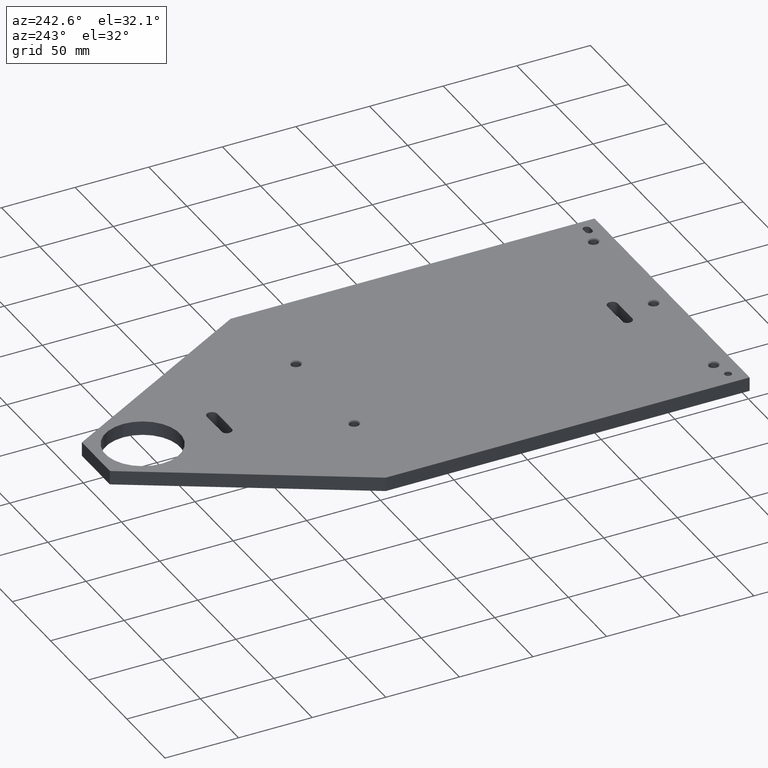
[diagram: clean part render]
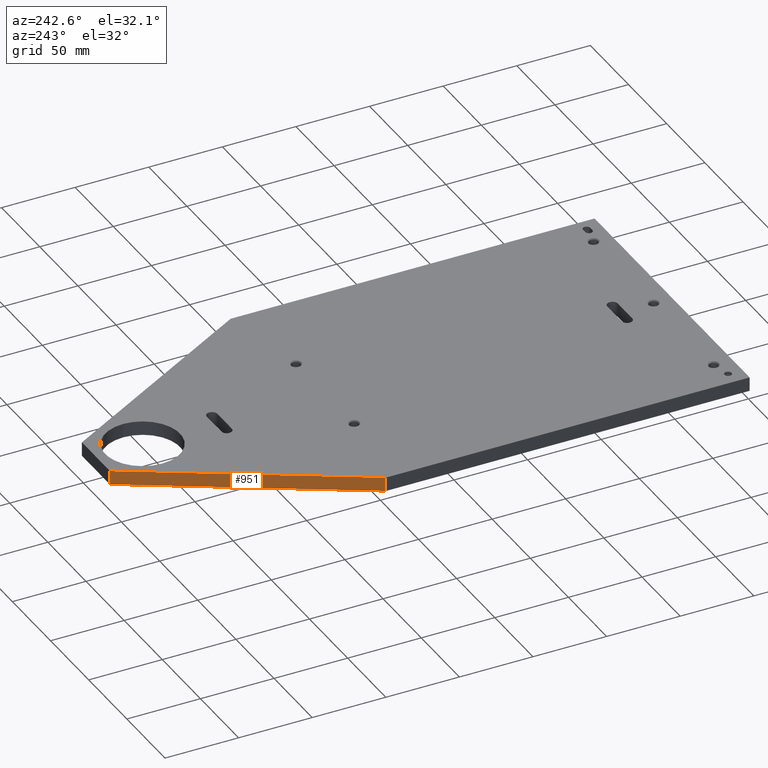
[diagram: same view with one face highlighted and labeled with its STEP entity id]
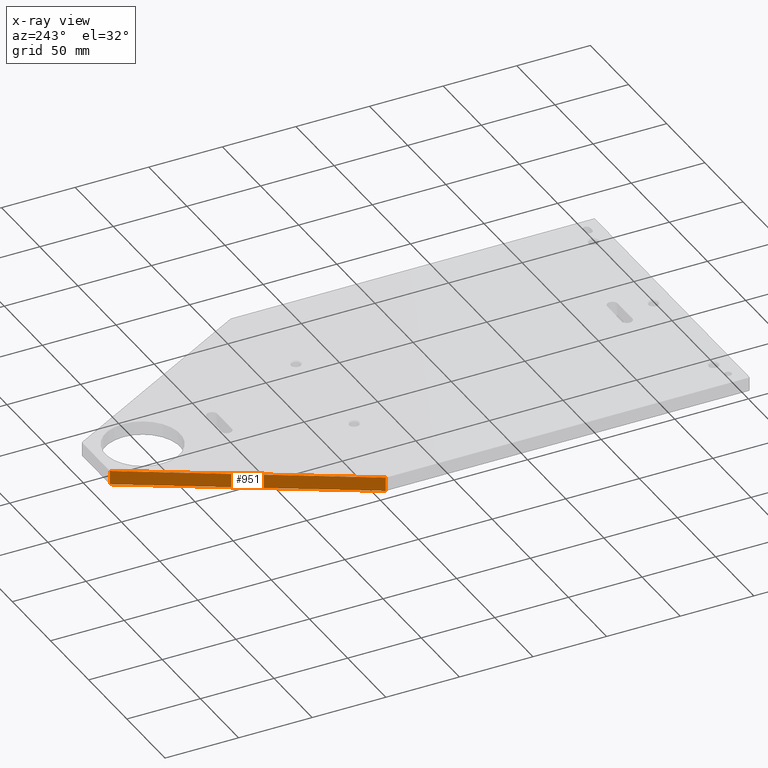
[diagram: x-ray of the same camera — body ghosted, the highlighted face saturated]
A machine part, auxiliary view. The second image highlights one B-rep face of the part: STEP entity #951.
The next image is the same camera in x-ray: the body ghosted, the highlighted face saturated — about 0% of this face is hidden behind the body in this view.
In plain terms, the highlighted planar face has unit normal (-0.866, 0.5, 0).
Its self-contained STEP definition (entity closure, byte-faithful):
#68 = VECTOR ( 'NONE', #1214, 39.37007874015748900 ) ;
#69 = LINE ( 'NONE', #1220, #68 ) ;
#151 = CARTESIAN_POINT ( 'NONE',  ( -0.7216878364870401600, 15.41150000000001300, 0.1875000000000000300 ) ) ;
#155 = DIRECTION ( 'NONE',  ( -0.4999999999999935100, -0.8660254037844422600, 0.0000000000000000000 ) ) ;
#235 = CARTESIAN_POINT ( 'NONE',  ( -0.7216878364870401600, 15.41150000000001300, -0.1875000000000000300 ) ) ;
#268 = DIRECTION ( 'NONE',  ( 0.0000000000000000000, 0.0000000000000000000, 1.000000000000000000 ) ) ;
#272 = CARTESIAN_POINT ( 'NONE',  ( -0.7216878364870401600, 15.41150000000001300, 0.1875000000000000300 ) ) ;
#280 = CARTESIAN_POINT ( 'NONE',  ( -4.000000000000003600, 9.733296769724413300, -0.1875000000000000300 ) ) ;
#282 = CARTESIAN_POINT ( 'NONE',  ( -0.7216878364870401600, 15.41150000000001300, -0.1875000000000000300 ) ) ;
#304 = CARTESIAN_POINT ( 'NONE',  ( -4.000000000000003600, 9.733296769724413300, 0.1875000000000000300 ) ) ;
#424 = LINE ( 'NONE', #151, #427 ) ;
#427 = VECTOR ( 'NONE', #155, 39.37007874015748900 ) ;
#436 = LINE ( 'NONE', #1394, #438 ) ;
#438 = VECTOR ( 'NONE', #1399, 39.37007874015748100 ) ;
#591 = VERTEX_POINT ( 'NONE', #304 ) ;
#613 = VERTEX_POINT ( 'NONE', #282 ) ;
#618 = VERTEX_POINT ( 'NONE', #272 ) ;
#621 = VERTEX_POINT ( 'NONE', #280 ) ;
#637 = LINE ( 'NONE', #235, #641 ) ;
#641 = VECTOR ( 'NONE', #268, 39.37007874015748100 ) ;
#676 = FACE_OUTER_BOUND ( 'NONE', #1009, .T. ) ;
#861 = EDGE_CURVE ( 'NONE', #613, #618, #637, .T. ) ;
#879 = AXIS2_PLACEMENT_3D ( 'NONE', #1329, #1332, #1318 ) ;
#951 = ADVANCED_FACE ( 'NONE', ( #676 ), #1331, .T. ) ;
#1009 = EDGE_LOOP ( 'NONE', ( #1099, #1104, #1109, #1110 ) ) ;
#1099 = ORIENTED_EDGE ( 'NONE', *, *, #1290, .F. ) ;
#1104 = ORIENTED_EDGE ( 'NONE', *, *, #861, .F. ) ;
#1109 = ORIENTED_EDGE ( 'NONE', *, *, #1129, .T. ) ;
#1110 = ORIENTED_EDGE ( 'NONE', *, *, #1298, .T. ) ;
#1129 = EDGE_CURVE ( 'NONE', #613, #621, #69, .T. ) ;
#1214 = DIRECTION ( 'NONE',  ( -0.4999999999999935100, -0.8660254037844422600, 0.0000000000000000000 ) ) ;
#1220 = CARTESIAN_POINT ( 'NONE',  ( -0.7216878364870401600, 15.41150000000001300, -0.1875000000000000300 ) ) ;
#1290 = EDGE_CURVE ( 'NONE', #618, #591, #424, .T. ) ;
#1298 = EDGE_CURVE ( 'NONE', #621, #591, #436, .T. ) ;
#1318 = DIRECTION ( 'NONE',  ( -0.4999999999999935100, -0.8660254037844422600, 0.0000000000000000000 ) ) ;
#1329 = CARTESIAN_POINT ( 'NONE',  ( -0.7216878364870401600, 15.41150000000001300, -0.1875000000000000300 ) ) ;
#1331 = PLANE ( 'NONE',  #879 ) ;
#1332 = DIRECTION ( 'NONE',  ( -0.8660254037844423700, 0.4999999999999935600, 0.0000000000000000000 ) ) ;
#1394 = CARTESIAN_POINT ( 'NONE',  ( -4.000000000000003600, 9.733296769724413300, -0.1875000000000000300 ) ) ;
#1399 = DIRECTION ( 'NONE',  ( 0.0000000000000000000, 0.0000000000000000000, 1.000000000000000000 ) ) ;